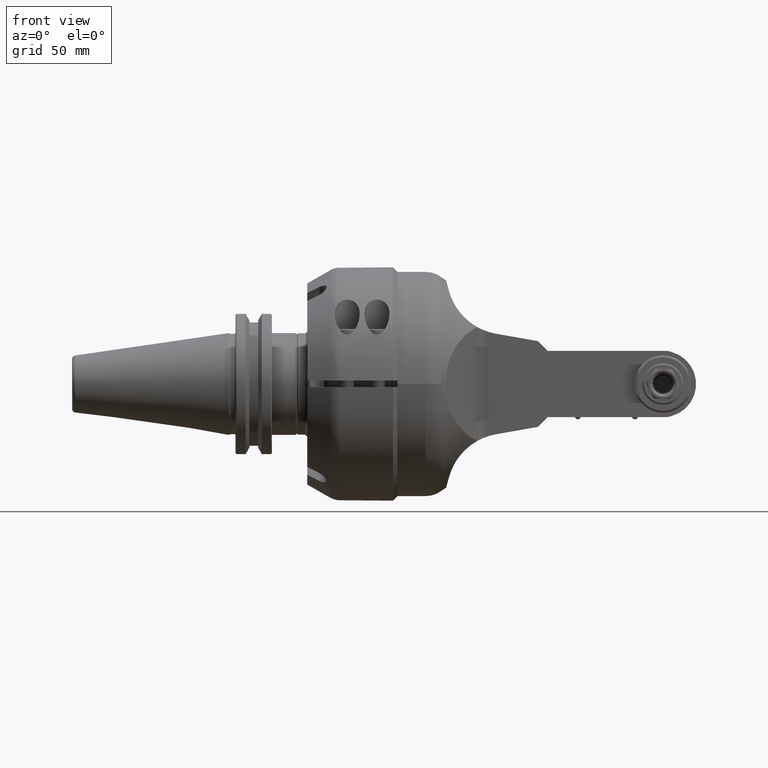
[diagram: clean part render]
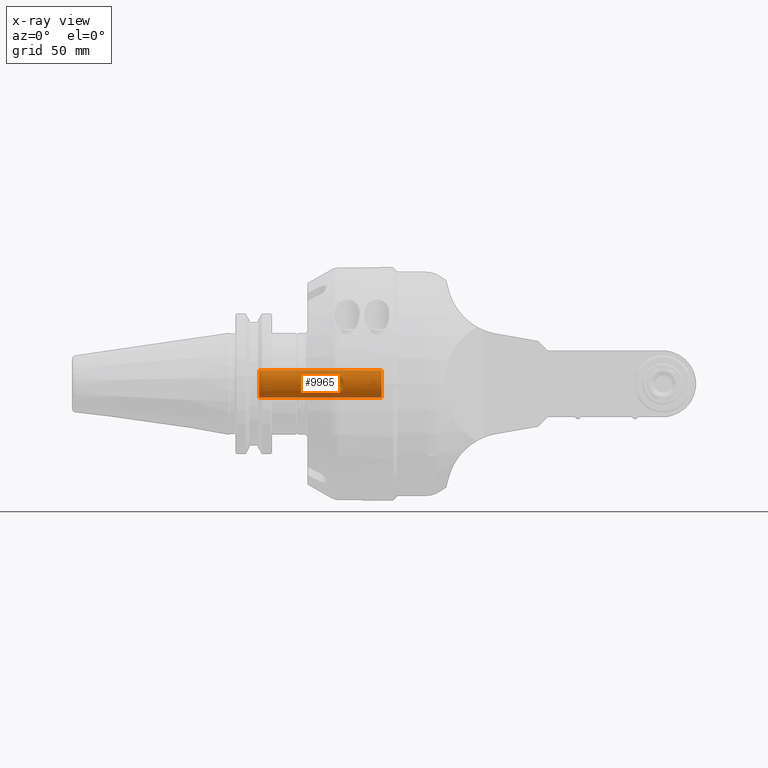
[diagram: x-ray — body ghosted, one internal face saturated and labeled with its STEP entity id]
A machine part, front view, then the same camera in x-ray: the body is ghosted and one INTERNAL B-rep face — a face not visible from any outside direction — is saturated and labeled: STEP entity #9965.
In plain terms, the highlighted cylindrical surface (bore or boss wall) has radius 6 mm, axis along (-1, 0, 0).
Its self-contained STEP definition (entity closure, byte-faithful):
#345=B_SPLINE_CURVE_WITH_KNOTS('',3,(#17075,#17076,#17077,#17078,#17079,
#17080,#17081,#17082,#17083,#17084,#17085,#17086,#17087,#17088,#17089,#17090,
#17091,#17092),.UNSPECIFIED.,.F.,.F.,(4,2,2,2,2,2,2,2,4),(0.62777148553307,
0.783846287513086,0.939921089493101,1.09773203027962,1.25554297106614,1.41335391185266,
1.57116485263918,1.72723965461919,1.88331445659921),.UNSPECIFIED.);
#346=B_SPLINE_CURVE_WITH_KNOTS('',3,(#17094,#17095,#17096,#17097,#17098,
#17099,#17100,#17101,#17102,#17103,#17104,#17105,#17106,#17107,#17108,#17109,
#17110,#17111,#17112),.UNSPECIFIED.,.F.,.F.,(4,2,2,2,3,2,2,2,4),(1.88331445659921,
2.03938925857923,2.19546406055924,2.35327500134576,2.51108594213228,2.6688968829188,
2.82670782370532,2.98278262568533,3.13885742766535),.UNSPECIFIED.);
#507=CYLINDRICAL_SURFACE('',#10898,6.);
#977=CIRCLE('',#10896,6.);
#979=CIRCLE('',#10899,6.);
#980=CIRCLE('',#10900,6.);
#1486=FACE_OUTER_BOUND('',#2097,.T.);
#2097=EDGE_LOOP('',(#8712,#8713,#8714,#8715,#8716,#8717,#8718,#8719,#8720));
#2922=LINE('',#17073,#3732);
#2923=LINE('',#17093,#3733);
#3732=VECTOR('',#13320,6.);
#3733=VECTOR('',#13321,6.);
#4704=VERTEX_POINT('',#17064);
#4706=VERTEX_POINT('',#17069);
#4707=VERTEX_POINT('',#17070);
#4708=VERTEX_POINT('',#17072);
#4709=VERTEX_POINT('',#17074);
#6072=EDGE_CURVE('',#4704,#4704,#977,.T.);
#6074=EDGE_CURVE('',#4706,#4707,#979,.T.);
#6075=EDGE_CURVE('',#4706,#4708,#2922,.T.);
#6076=EDGE_CURVE('',#4709,#4708,#345,.T.);
#6077=EDGE_CURVE('',#4709,#4704,#2923,.T.);
#6078=EDGE_CURVE('',#4708,#4709,#346,.T.);
#6079=EDGE_CURVE('',#4707,#4706,#980,.T.);
#8712=ORIENTED_EDGE('',*,*,#6074,.F.);
#8713=ORIENTED_EDGE('',*,*,#6075,.T.);
#8714=ORIENTED_EDGE('',*,*,#6076,.F.);
#8715=ORIENTED_EDGE('',*,*,#6077,.T.);
#8716=ORIENTED_EDGE('',*,*,#6072,.F.);
#8717=ORIENTED_EDGE('',*,*,#6077,.F.);
#8718=ORIENTED_EDGE('',*,*,#6078,.F.);
#8719=ORIENTED_EDGE('',*,*,#6075,.F.);
#8720=ORIENTED_EDGE('',*,*,#6079,.F.);
#9965=ADVANCED_FACE('',(#1486),#507,.T.);
#10896=AXIS2_PLACEMENT_3D('',#17065,#13312,#13313);
#10898=AXIS2_PLACEMENT_3D('',#17068,#13316,#13317);
#10899=AXIS2_PLACEMENT_3D('',#17071,#13318,#13319);
#10900=AXIS2_PLACEMENT_3D('',#17113,#13322,#13323);
#13312=DIRECTION('center_axis',(1.,0.,0.));
#13313=DIRECTION('ref_axis',(0.,-1.,0.));
#13316=DIRECTION('center_axis',(-1.,0.,0.));
#13317=DIRECTION('ref_axis',(0.,1.,0.));
#13318=DIRECTION('center_axis',(-1.,0.,0.));
#13319=DIRECTION('ref_axis',(0.,1.,0.));
#13320=DIRECTION('',(1.,0.,0.));
#13321=DIRECTION('',(1.,0.,0.));
#13322=DIRECTION('center_axis',(-1.,0.,0.));
#13323=DIRECTION('ref_axis',(0.,1.,0.));
#17064=CARTESIAN_POINT('',(-19.,59.,0.));
#17065=CARTESIAN_POINT('Origin',(-19.,65.,0.));
#17068=CARTESIAN_POINT('Origin',(5.00000250596,65.,0.));
#17069=CARTESIAN_POINT('',(-72.5,59.,0.));
#17070=CARTESIAN_POINT('',(-72.499999999999,65.,5.999999999999));
#17071=CARTESIAN_POINT('Origin',(-72.5,65.,0.));
#17072=CARTESIAN_POINT('',(-43.5,59.,6.44949795900495E-16));
#17073=CARTESIAN_POINT('',(5.00000250596,59.,7.34788079488412E-16));
#17074=CARTESIAN_POINT('',(-35.5,59.,0.));
#17075=CARTESIAN_POINT('Ctrl Pts',(-35.5,59.,6.93889390390723E-16));
#17076=CARTESIAN_POINT('Ctrl Pts',(-35.5,59.,0.520249339933387));
#17077=CARTESIAN_POINT('Ctrl Pts',(-35.6075109371939,59.0732861795248,1.06408494730268));
#17078=CARTESIAN_POINT('Ctrl Pts',(-36.0216353424459,59.336654089527,2.04566028873394));
#17079=CARTESIAN_POINT('Ctrl Pts',(-36.3274602819515,59.5245614597835,2.48431453144388));
#17080=CARTESIAN_POINT('Ctrl Pts',(-37.0195132948257,59.8944793551634,3.17636754431808));
#17081=CARTESIAN_POINT('Ctrl Pts',(-37.4573329820069,60.1051049221371,3.47966275670567));
#17082=CARTESIAN_POINT('Ctrl Pts',(-38.4333640795862,60.4255886215837,3.8913775523215));
#17083=CARTESIAN_POINT('Ctrl Pts',(-38.9739635307116,60.5278640450004,4.));
#17084=CARTESIAN_POINT('Ctrl Pts',(-40.0260364692884,60.5278640450004,4.));
#17085=CARTESIAN_POINT('Ctrl Pts',(-40.5666359204138,60.4255886215837,3.8913775523215));
#17086=CARTESIAN_POINT('Ctrl Pts',(-41.5426670179931,60.1051049221371,3.47966275670567));
#17087=CARTESIAN_POINT('Ctrl Pts',(-41.9804867051743,59.8944793551634,3.17636754431808));
#17088=CARTESIAN_POINT('Ctrl Pts',(-42.6725397180485,59.5245614597835,2.48431453144388));
#17089=CARTESIAN_POINT('Ctrl Pts',(-42.9783646575541,59.336654089527,2.04566028873394));
#17090=CARTESIAN_POINT('Ctrl Pts',(-43.3924890628061,59.0732861795248,1.06408494730268));
#17091=CARTESIAN_POINT('Ctrl Pts',(-43.5,59.,0.520249339933385));
#17092=CARTESIAN_POINT('Ctrl Pts',(-43.5,59.,-6.93889390390723E-16));
#17093=CARTESIAN_POINT('',(5.00000250596,59.,7.34788079488412E-16));
#17094=CARTESIAN_POINT('Ctrl Pts',(-43.5,59.,5.55111512312578E-16));
#17095=CARTESIAN_POINT('Ctrl Pts',(-43.5,59.,-0.520249339933386));
#17096=CARTESIAN_POINT('Ctrl Pts',(-43.3924890628061,59.0732861795248,-1.06408494730267));
#17097=CARTESIAN_POINT('Ctrl Pts',(-42.9783646575541,59.336654089527,-2.04566028873394));
#17098=CARTESIAN_POINT('Ctrl Pts',(-42.6725397180485,59.5245614597835,-2.48431453144388));
#17099=CARTESIAN_POINT('Ctrl Pts',(-41.9804867051743,59.8944793551634,-3.17636754431808));
#17100=CARTESIAN_POINT('Ctrl Pts',(-41.5426670179931,60.1051049221371,-3.47966275670568));
#17101=CARTESIAN_POINT('Ctrl Pts',(-40.5666359204138,60.4255886215837,-3.8913775523215));
#17102=CARTESIAN_POINT('Ctrl Pts',(-40.0260364692884,60.5278640450004,-4.));
#17103=CARTESIAN_POINT('Ctrl Pts',(-39.5,60.5278640450004,-4.));
#17104=CARTESIAN_POINT('Ctrl Pts',(-38.9739635307116,60.5278640450004,-4.));
#17105=CARTESIAN_POINT('Ctrl Pts',(-38.4333640795862,60.4255886215837,-3.8913775523215));
#17106=CARTESIAN_POINT('Ctrl Pts',(-37.4573329820069,60.1051049221371,-3.47966275670567));
#17107=CARTESIAN_POINT('Ctrl Pts',(-37.0195132948257,59.8944793551634,-3.17636754431808));
#17108=CARTESIAN_POINT('Ctrl Pts',(-36.3274602819515,59.5245614597835,-2.48431453144388));
#17109=CARTESIAN_POINT('Ctrl Pts',(-36.0216353424459,59.336654089527,-2.04566028873394));
#17110=CARTESIAN_POINT('Ctrl Pts',(-35.6075109371939,59.0732861795248,-1.06408494730267));
#17111=CARTESIAN_POINT('Ctrl Pts',(-35.5,59.,-0.520249339933386));
#17112=CARTESIAN_POINT('Ctrl Pts',(-35.5,59.,-4.16333634234434E-16));
#17113=CARTESIAN_POINT('Origin',(-72.5,65.,0.));